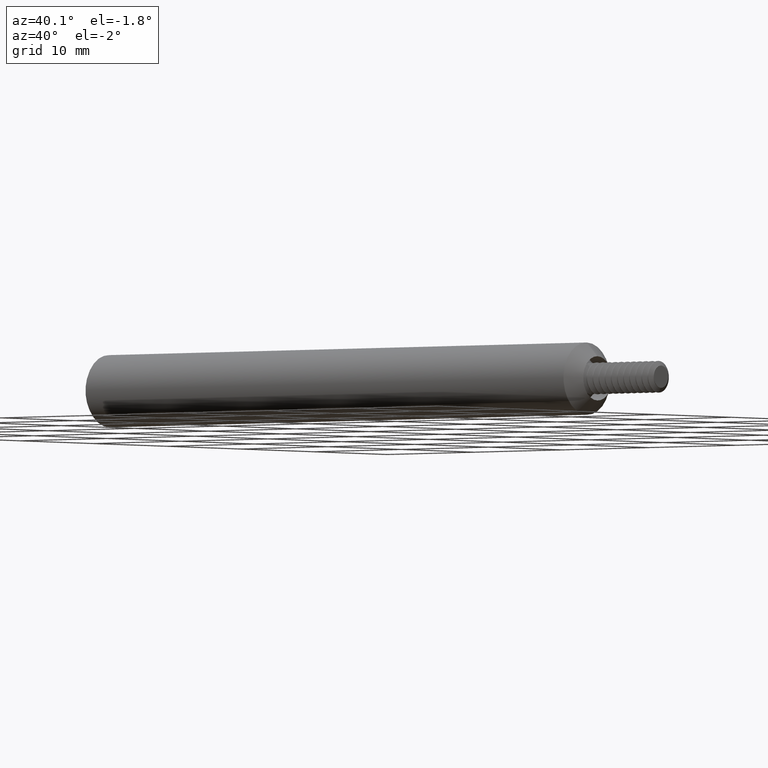
[diagram: clean part render]
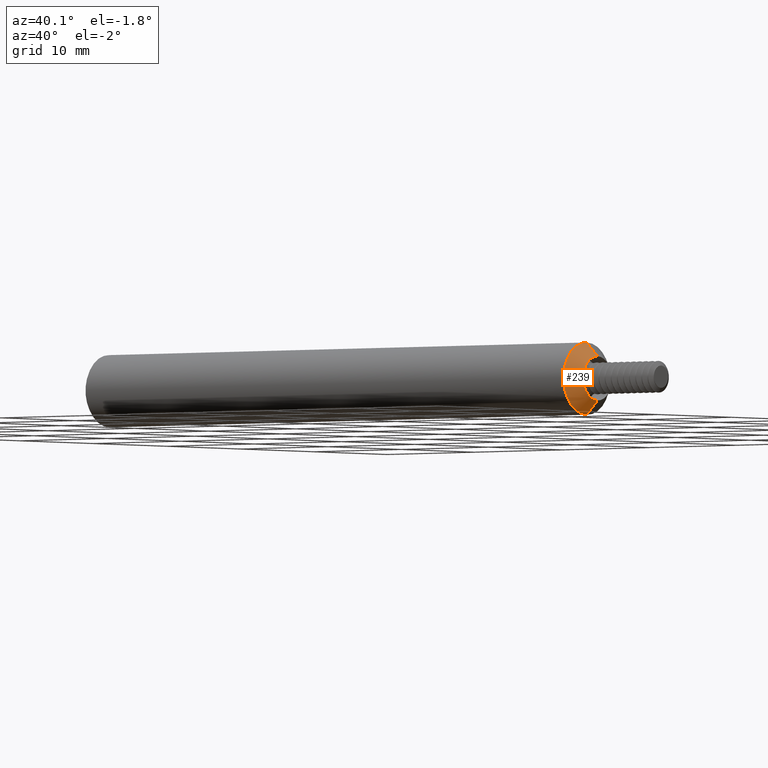
[diagram: same view with one face highlighted and labeled with its STEP entity id]
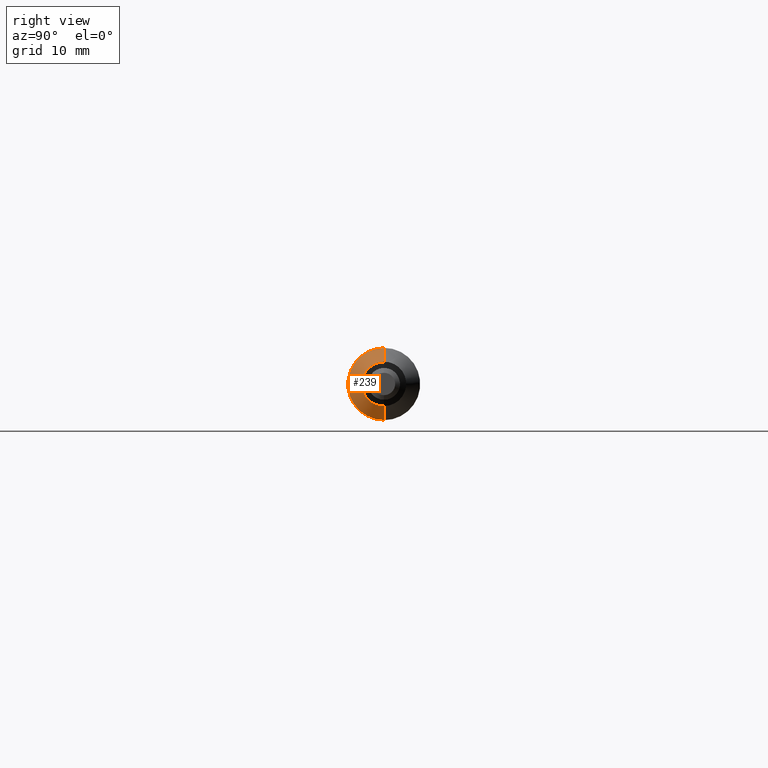
[diagram: same view with one face highlighted and labeled with its STEP entity id]
A machine part, auxiliary view. The second image highlights one B-rep face of the part: STEP entity #239.
A second angle (right view) of the same face is appended — the face is thin or edge-on in the first view.
In plain terms, the highlighted conical surface has half-angle 45 deg.
Its self-contained STEP definition (entity closure, byte-faithful):
#9 = DIRECTION ( 'NONE',  ( -1.000000000000000000, -0.000000000000000000, -0.000000000000000000 ) ) ;
#58 = VERTEX_POINT ( 'NONE', #1059 ) ;
#103 = VERTEX_POINT ( 'NONE', #1282 ) ;
#187 = EDGE_CURVE ( 'NONE', #103, #58, #630, .T. ) ;
#239 = ADVANCED_FACE ( 'NONE', ( #670 ), #1275, .T. ) ;
#258 = AXIS2_PLACEMENT_3D ( 'NONE', #769, #2345, #371 ) ;
#271 = VECTOR ( 'NONE', #1512, 39.37007874015748143 ) ;
#328 = CARTESIAN_POINT ( 'NONE',  ( 2.215776406871192705, 0.000000000000000000, 0.07407359312880729130 ) ) ;
#371 = DIRECTION ( 'NONE',  ( 0.000000000000000000, 0.000000000000000000, 1.000000000000000000 ) ) ;
#376 = EDGE_LOOP ( 'NONE', ( #2801, #2699, #2508, #927 ) ) ;
#459 = CARTESIAN_POINT ( 'NONE',  ( 2.215776406871192705, 0.000000000000000000, 0.000000000000000000 ) ) ;
#485 = EDGE_CURVE ( 'NONE', #58, #2665, #1534, .T. ) ;
#630 = LINE ( 'NONE', #1548, #271 ) ;
#670 = FACE_OUTER_BOUND ( 'NONE', #376, .T. ) ;
#769 = CARTESIAN_POINT ( 'NONE',  ( 2.165000000000000036, 0.000000000000000000, 0.000000000000000000 ) ) ;
#826 = EDGE_CURVE ( 'NONE', #1268, #103, #1269, .T. ) ;
#927 = ORIENTED_EDGE ( 'NONE', *, *, #485, .F. ) ;
#1031 = AXIS2_PLACEMENT_3D ( 'NONE', #2201, #2664, #2471 ) ;
#1059 = CARTESIAN_POINT ( 'NONE',  ( 2.165000000000000036, 1.528971528735470422E-17, -0.1248500000000000026 ) ) ;
#1268 = VERTEX_POINT ( 'NONE', #1983 ) ;
#1269 = CIRCLE ( 'NONE', #1031, 0.07649999999999997080 ) ;
#1275 = CONICAL_SURFACE ( 'NONE', #2018, 0.07407359312880729130, 0.7853981633974488341 ) ;
#1282 = CARTESIAN_POINT ( 'NONE',  ( 2.213350000000000151, 1.232913165041597546E-17, -0.07649999999999997080 ) ) ;
#1348 = VECTOR ( 'NONE', #2272, 39.37007874015748143 ) ;
#1512 = DIRECTION ( 'NONE',  ( -0.7071067811865471286, 8.659560562354937789E-17, -0.7071067811865479058 ) ) ;
#1534 = CIRCLE ( 'NONE', #258, 0.1248500000000000026 ) ;
#1548 = CARTESIAN_POINT ( 'NONE',  ( 2.215776406871192705, 9.071398872653723231E-18, -0.07407359312880729130 ) ) ;
#1786 = EDGE_CURVE ( 'NONE', #1268, #2665, #2716, .T. ) ;
#1983 = CARTESIAN_POINT ( 'NONE',  ( 2.213350000000000151, 0.000000000000000000, 0.07649999999999997080 ) ) ;
#2018 = AXIS2_PLACEMENT_3D ( 'NONE', #459, #9, #2622 ) ;
#2201 = CARTESIAN_POINT ( 'NONE',  ( 2.213350000000000151, 0.000000000000000000, 0.000000000000000000 ) ) ;
#2272 = DIRECTION ( 'NONE',  ( -0.7071067811865471286, 0.000000000000000000, 0.7071067811865479058 ) ) ;
#2330 = CARTESIAN_POINT ( 'NONE',  ( 2.165000000000000036, 0.000000000000000000, 0.1248500000000000026 ) ) ;
#2345 = DIRECTION ( 'NONE',  ( -1.000000000000000000, -0.000000000000000000, -0.000000000000000000 ) ) ;
#2471 = DIRECTION ( 'NONE',  ( 0.000000000000000000, 0.000000000000000000, 1.000000000000000000 ) ) ;
#2508 = ORIENTED_EDGE ( 'NONE', *, *, #1786, .T. ) ;
#2622 = DIRECTION ( 'NONE',  ( 0.000000000000000000, 0.000000000000000000, 1.000000000000000000 ) ) ;
#2664 = DIRECTION ( 'NONE',  ( 1.000000000000000000, 0.000000000000000000, 0.000000000000000000 ) ) ;
#2665 = VERTEX_POINT ( 'NONE', #2330 ) ;
#2699 = ORIENTED_EDGE ( 'NONE', *, *, #826, .F. ) ;
#2716 = LINE ( 'NONE', #328, #1348 ) ;
#2801 = ORIENTED_EDGE ( 'NONE', *, *, #187, .F. ) ;